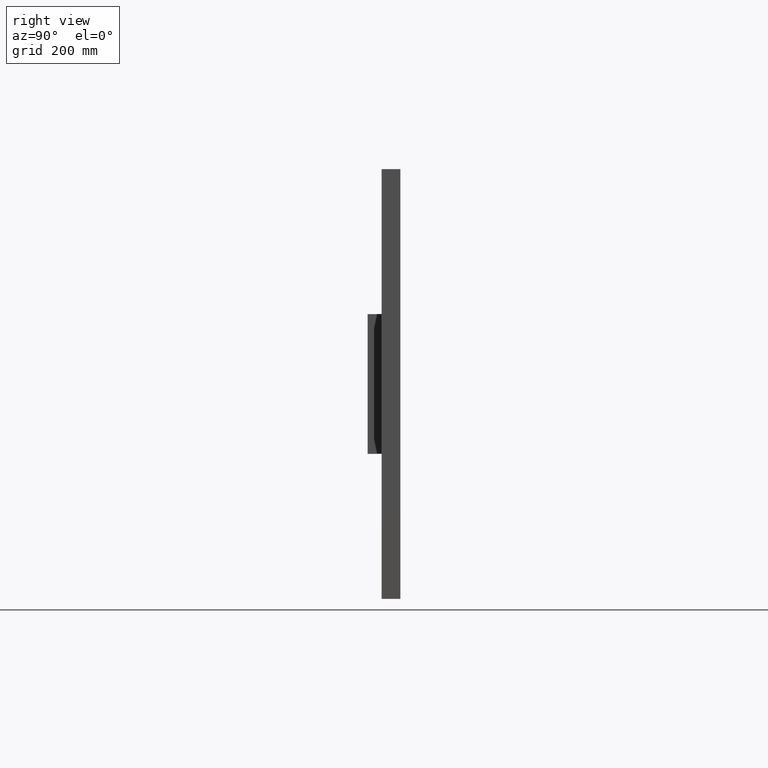
[diagram: clean part render]
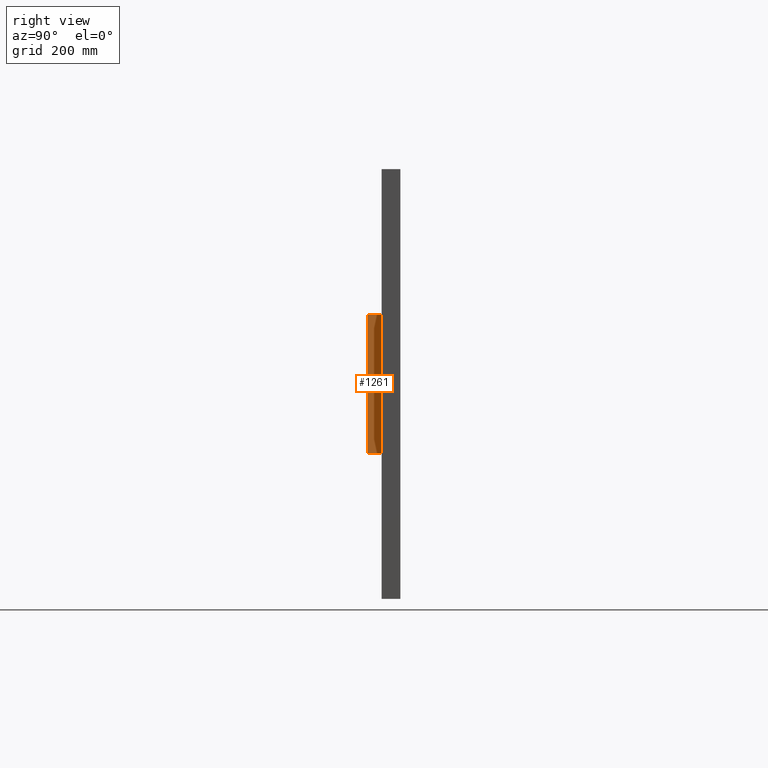
[diagram: same view with one face highlighted and labeled with its STEP entity id]
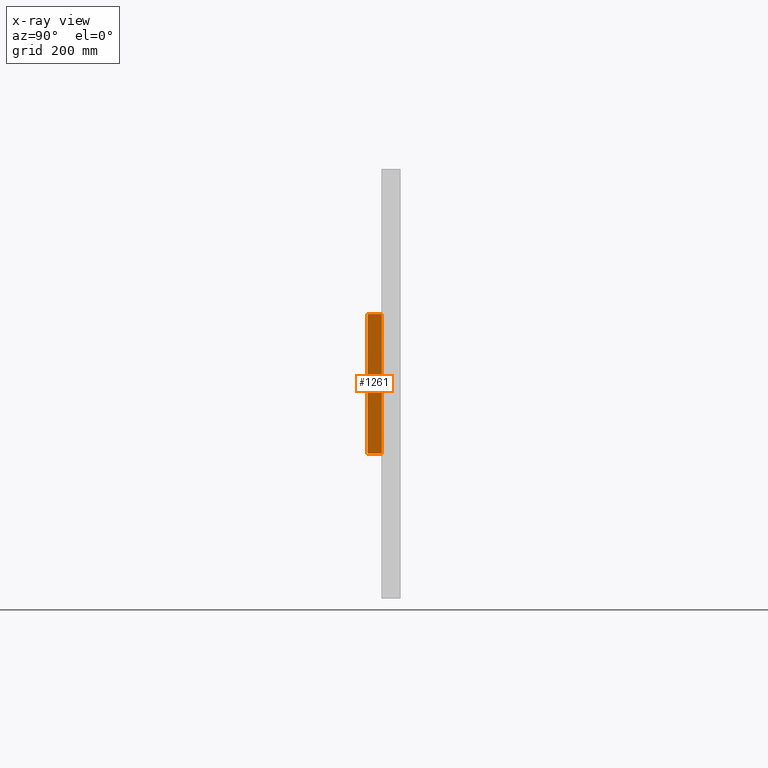
[diagram: x-ray of the same camera — body ghosted, the highlighted face saturated]
A machine part, right view. The second image highlights one B-rep face of the part: STEP entity #1261.
The next image is the same camera in x-ray: the body ghosted, the highlighted face saturated — about 0% of this face is hidden behind the body in this view.
In plain terms, the highlighted planar face has unit normal (-1, 0, -0).
Its self-contained STEP definition (entity closure, byte-faithful):
#44 = CARTESIAN_POINT ( 'NONE',  ( -170.0000000000002300, -26.00000000000000000, -129.9999999999999100 ) ) ;
#351 = VECTOR ( 'NONE', #2032, 1000.000000000000000 ) ;
#365 = LINE ( 'NONE', #1442, #351 ) ;
#515 = CARTESIAN_POINT ( 'NONE',  ( -170.0000000000002300, -26.00000000000000000, -129.9999999999999100 ) ) ;
#587 = VECTOR ( 'NONE', #2168, 1000.000000000000000 ) ;
#598 = LINE ( 'NONE', #2593, #587 ) ;
#608 = FACE_OUTER_BOUND ( 'NONE', #1169, .T. ) ;
#696 = EDGE_CURVE ( 'NONE', #2594, #1432, #1001, .T. ) ;
#763 = DIRECTION ( 'NONE',  ( -0.0000000000000000000, 1.000000000000000000, -0.0000000000000000000 ) ) ;
#885 = EDGE_CURVE ( 'NONE', #1736, #2594, #928, .T. ) ;
#928 = LINE ( 'NONE', #515, #957 ) ;
#957 = VECTOR ( 'NONE', #763, 1000.000000000000000 ) ;
#963 = CARTESIAN_POINT ( 'NONE',  ( -170.0000000000002600, -26.00000000000000000, 130.0000000000000900 ) ) ;
#1001 = LINE ( 'NONE', #2284, #1049 ) ;
#1049 = VECTOR ( 'NONE', #3030, 1000.000000000000000 ) ;
#1169 = EDGE_LOOP ( 'NONE', ( #2073, #2076, #2077, #2079 ) ) ;
#1261 = ADVANCED_FACE ( 'NONE', ( #608 ), #2441, .F. ) ;
#1287 = EDGE_CURVE ( 'NONE', #1736, #2251, #598, .T. ) ;
#1432 = VERTEX_POINT ( 'NONE', #3011 ) ;
#1442 = CARTESIAN_POINT ( 'NONE',  ( -170.0000000000002600, -26.00000000000000000, 130.0000000000000900 ) ) ;
#1666 = EDGE_CURVE ( 'NONE', #2251, #1432, #365, .T. ) ;
#1736 = VERTEX_POINT ( 'NONE', #44 ) ;
#2032 = DIRECTION ( 'NONE',  ( -0.0000000000000000000, 1.000000000000000000, -0.0000000000000000000 ) ) ;
#2073 = ORIENTED_EDGE ( 'NONE', *, *, #696, .T. ) ;
#2076 = ORIENTED_EDGE ( 'NONE', *, *, #1666, .F. ) ;
#2077 = ORIENTED_EDGE ( 'NONE', *, *, #1287, .F. ) ;
#2079 = ORIENTED_EDGE ( 'NONE', *, *, #885, .T. ) ;
#2168 = DIRECTION ( 'NONE',  ( -1.067522139062650400E-016, 0.0000000000000000000, 1.000000000000000000 ) ) ;
#2251 = VERTEX_POINT ( 'NONE', #963 ) ;
#2284 = CARTESIAN_POINT ( 'NONE',  ( -170.0000000000002600, 0.0000000000000000000, 130.0000000000000900 ) ) ;
#2347 = AXIS2_PLACEMENT_3D ( 'NONE', #2386, #2503, #2429 ) ;
#2386 = CARTESIAN_POINT ( 'NONE',  ( -170.0000000000002600, -26.00000000000000000, 130.0000000000000900 ) ) ;
#2429 = DIRECTION ( 'NONE',  ( -1.067522139062650700E-016, 0.0000000000000000000, 1.000000000000000000 ) ) ;
#2441 = PLANE ( 'NONE',  #2347 ) ;
#2503 = DIRECTION ( 'NONE',  ( -1.000000000000000000, 0.0000000000000000000, -1.067522139062650700E-016 ) ) ;
#2593 = CARTESIAN_POINT ( 'NONE',  ( -170.0000000000002600, -26.00000000000000000, 130.0000000000000900 ) ) ;
#2594 = VERTEX_POINT ( 'NONE', #3213 ) ;
#3011 = CARTESIAN_POINT ( 'NONE',  ( -170.0000000000002600, 0.0000000000000000000, 130.0000000000000900 ) ) ;
#3030 = DIRECTION ( 'NONE',  ( -1.067522139062650400E-016, 0.0000000000000000000, 1.000000000000000000 ) ) ;
#3213 = CARTESIAN_POINT ( 'NONE',  ( -170.0000000000002300, -0.0000000000000000000, -129.9999999999999100 ) ) ;